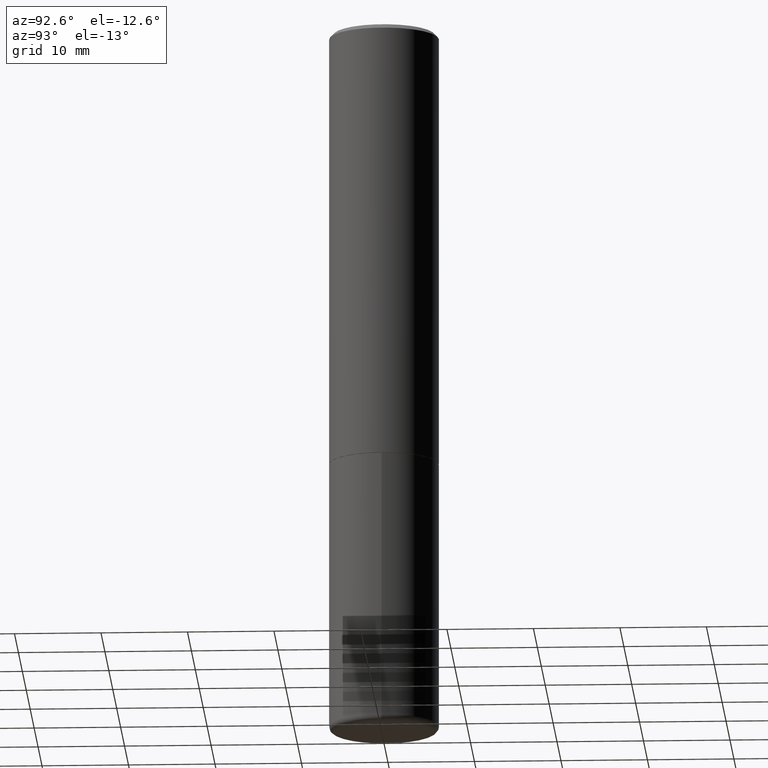
[diagram: clean part render]
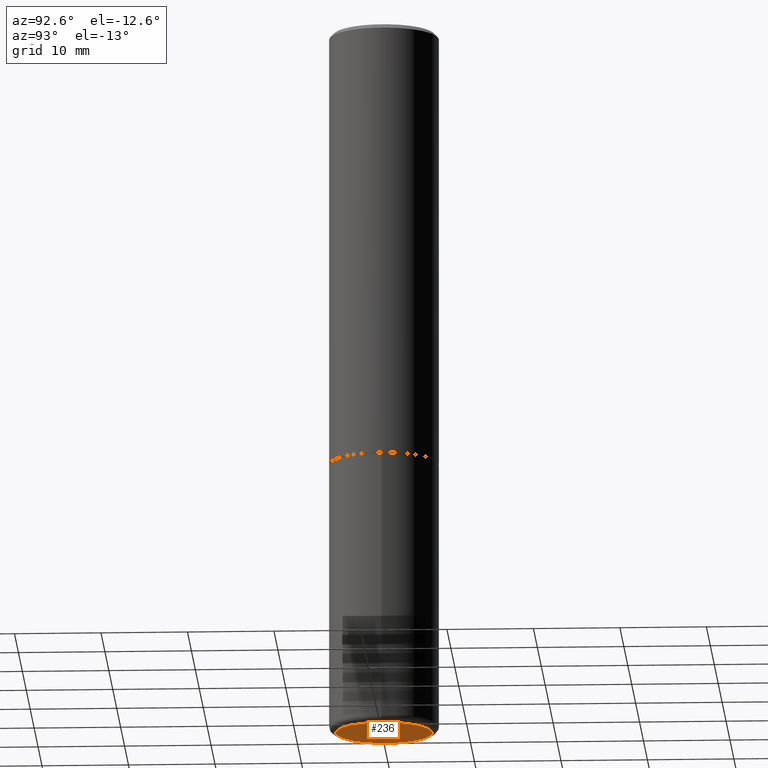
[diagram: same view with one face highlighted and labeled with its STEP entity id]
A machine part, auxiliary view. The second image highlights one B-rep face of the part: STEP entity #236.
In plain terms, the highlighted planar face has unit normal (0, -0, -1).
Its self-contained STEP definition (entity closure, byte-faithful):
#11 = AXIS2_PLACEMENT_3D ( 'NONE', #292, #58, #266 ) ;
#17 = ORIENTED_EDGE ( 'NONE', *, *, #373, .F. ) ;
#45 = VERTEX_POINT ( 'NONE', #395 ) ;
#58 = DIRECTION ( 'NONE',  ( -2.445468806185136597E-29, 3.491481338843145583E-15, 1.000000000000000000 ) ) ;
#59 = CIRCLE ( 'NONE', #11, 0.2200000000000000011 ) ;
#83 = CARTESIAN_POINT ( 'NONE',  ( -0.2200000000000000011, -9.625166702121341610E-15, -3.249999999999999556 ) ) ;
#95 = CIRCLE ( 'NONE', #372, 0.2200000000000000011 ) ;
#115 = EDGE_CURVE ( 'NONE', #239, #45, #59, .T. ) ;
#128 = CARTESIAN_POINT ( 'NONE',  ( 1.358398051899500366E-28, -3.275945279050349102E-15, -3.249999999999999556 ) ) ;
#166 = DIRECTION ( 'NONE',  ( -2.445468806185136597E-29, 3.491481338843145583E-15, 1.000000000000000000 ) ) ;
#198 = CARTESIAN_POINT ( 'NONE',  ( 7.947773620101692818E-29, -1.134731435124022127E-14, -3.249999999999999556 ) ) ;
#203 = AXIS2_PLACEMENT_3D ( 'NONE', #128, #259, #380 ) ;
#225 = FACE_OUTER_BOUND ( 'NONE', #247, .T. ) ;
#236 = ADVANCED_FACE ( 'NONE', ( #225 ), #333, .T. ) ;
#239 = VERTEX_POINT ( 'NONE', #83 ) ;
#247 = EDGE_LOOP ( 'NONE', ( #17, #358 ) ) ;
#259 = DIRECTION ( 'NONE',  ( 2.438088387897960049E-29, -3.491481338843145188E-15, -1.000000000000000000 ) ) ;
#266 = DIRECTION ( 'NONE',  ( 1.000000000000000000, -6.982962677686270655E-15, 0.000000000000000000 ) ) ;
#292 = CARTESIAN_POINT ( 'NONE',  ( 7.947773620101692818E-29, -1.134731435124022127E-14, -3.249999999999999556 ) ) ;
#333 = PLANE ( 'NONE',  #203 ) ;
#350 = DIRECTION ( 'NONE',  ( 1.000000000000000000, -6.982962677686270655E-15, 0.000000000000000000 ) ) ;
#358 = ORIENTED_EDGE ( 'NONE', *, *, #115, .F. ) ;
#372 = AXIS2_PLACEMENT_3D ( 'NONE', #198, #166, #350 ) ;
#373 = EDGE_CURVE ( 'NONE', #45, #239, #95, .T. ) ;
#380 = DIRECTION ( 'NONE',  ( -1.000000000000000000, 6.982962677686265922E-15, -4.876176775795935793E-29 ) ) ;
#395 = CARTESIAN_POINT ( 'NONE',  ( 0.2200000000000000011, -1.288356614033120121E-14, -3.249999999999999556 ) ) ;